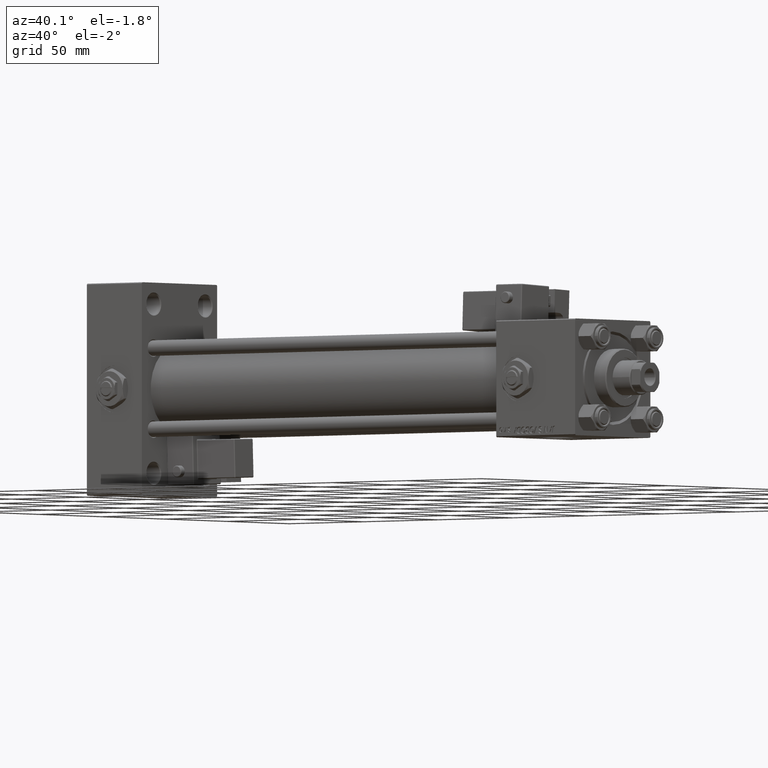
[diagram: clean part render]
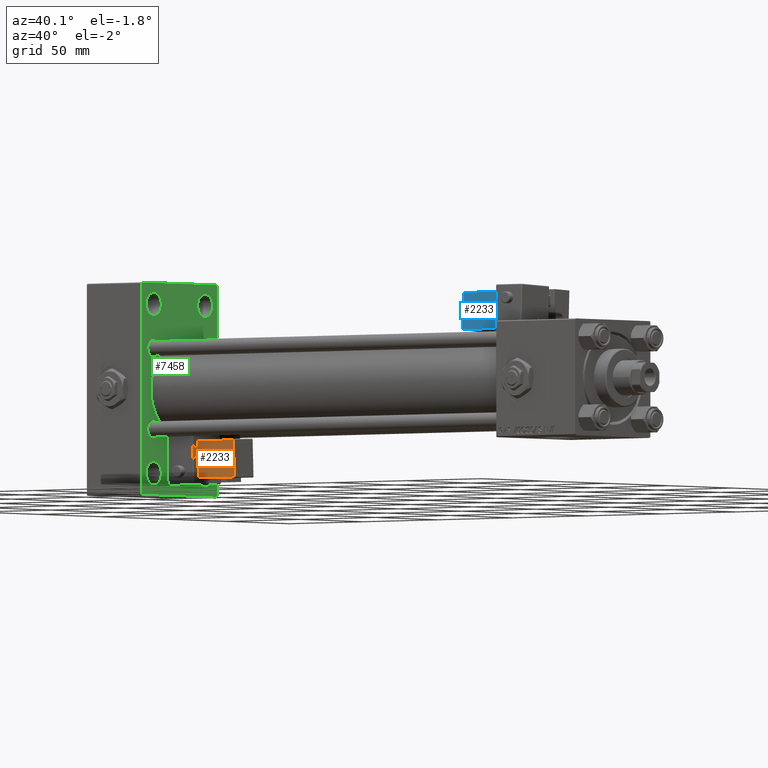
[diagram: same view with three faces highlighted in distinct colors, each labeled with its STEP entity id]
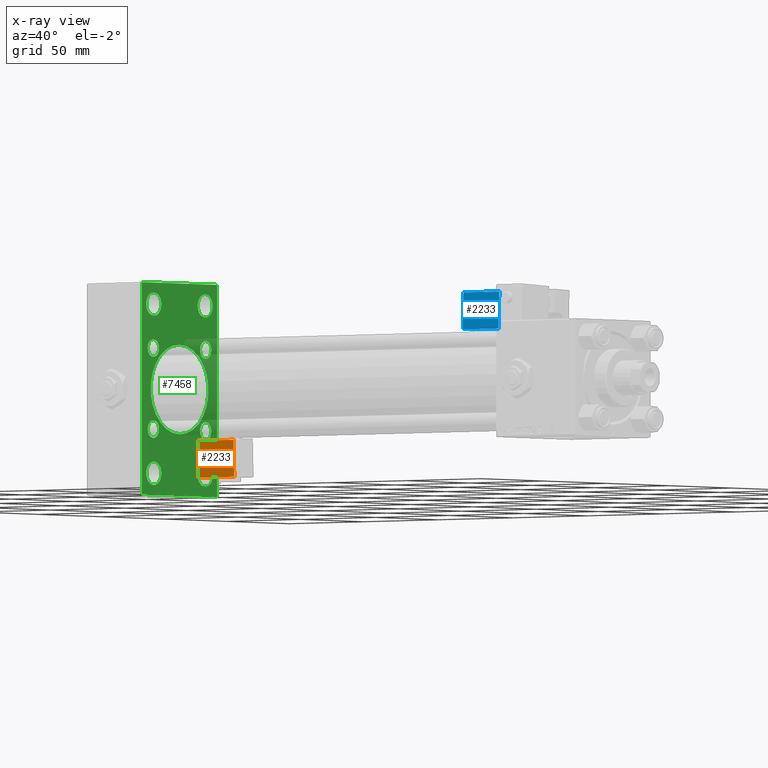
[diagram: x-ray of the same camera — body ghosted, the three highlighted faces saturated]
A machine part, auxiliary view with three faces highlighted in distinct colors.
The next image is the same camera in x-ray (body ghosted, the three faces saturated) — at least one of them is partly hidden behind the body in this view.
Their STEP definitions:

[orange] entity #2233 — the highlighted planar face has unit normal (0, 0.9994, 0.0353).
#734 = CARTESIAN_POINT ( 'NONE',  ( 33.24999999999999289, -32.24999999999999289, 22.00000000000000355 ) ) ;
#2233 = ADVANCED_FACE ( 'NONE', ( #52641 ), #23288, .F. ) ;
#2437 = DIRECTION ( 'NONE',  ( 0.000000000000000000, -0.000000000000000000, 1.000000000000000000 ) ) ;
#3435 = LINE ( 'NONE', #3699, #20481 ) ;
#3699 = CARTESIAN_POINT ( 'NONE',  ( 33.75000000000000000, -32.24999999999999289, 2.500000000000009326 ) ) ;
#6422 = EDGE_CURVE ( 'NONE', #32955, #26577, #29610, .T. ) ;
#7736 = EDGE_LOOP ( 'NONE', ( #31886, #29044, #33452, #52661 ) ) ;
#8803 = CARTESIAN_POINT ( 'NONE',  ( 33.75000000000000000, -32.24999999999999289, 21.50000000000000000 ) ) ;
#9824 = CARTESIAN_POINT ( 'NONE',  ( 33.24999999999999289, -32.24999999999999289, 21.50000000000000000 ) ) ;
#14534 = DIRECTION ( 'NONE',  ( 1.334402673828313339E-16, 0.000000000000000000, -1.000000000000000000 ) ) ;
#15736 = CARTESIAN_POINT ( 'NONE',  ( 9.250000000000003553, -32.24999999999999289, 21.50000000000000000 ) ) ;
#18372 = DIRECTION ( 'NONE',  ( -1.000000000000000000, 0.000000000000000000, -1.334402673828313339E-16 ) ) ;
#20481 = VECTOR ( 'NONE', #32761, 1000.000000000000000 ) ;
#22413 = EDGE_CURVE ( 'NONE', #39775, #32955, #50410, .T. ) ;
#23288 = PLANE ( 'NONE',  #27266 ) ;
#24187 = CARTESIAN_POINT ( 'NONE',  ( 9.250000000000005329, -32.24999999999999289, 2.500000000000004885 ) ) ;
#26577 = VERTEX_POINT ( 'NONE', #15736 ) ;
#26849 = LINE ( 'NONE', #39473, #32961 ) ;
#27159 = VECTOR ( 'NONE', #45476, 1000.000000000000000 ) ;
#27266 = AXIS2_PLACEMENT_3D ( 'NONE', #44661, #40011, #2437 ) ;
#29044 = ORIENTED_EDGE ( 'NONE', *, *, #29190, .T. ) ;
#29190 = EDGE_CURVE ( 'NONE', #50508, #39775, #3435, .T. ) ;
#29610 = LINE ( 'NONE', #8803, #50258 ) ;
#31886 = ORIENTED_EDGE ( 'NONE', *, *, #52903, .T. ) ;
#32761 = DIRECTION ( 'NONE',  ( 1.000000000000000000, -0.000000000000000000, 1.334402673828313339E-16 ) ) ;
#32955 = VERTEX_POINT ( 'NONE', #9824 ) ;
#32961 = VECTOR ( 'NONE', #14534, 1000.000000000000000 ) ;
#33452 = ORIENTED_EDGE ( 'NONE', *, *, #22413, .T. ) ;
#34722 = CARTESIAN_POINT ( 'NONE',  ( 33.24999999999999289, -32.24999999999999289, 2.500000000000008438 ) ) ;
#39473 = CARTESIAN_POINT ( 'NONE',  ( 9.250000000000005329, -32.24999999999999289, 2.000000000000005329 ) ) ;
#39775 = VERTEX_POINT ( 'NONE', #34722 ) ;
#40011 = DIRECTION ( 'NONE',  ( -0.000000000000000000, 1.000000000000000000, 0.000000000000000000 ) ) ;
#44661 = CARTESIAN_POINT ( 'NONE',  ( 33.75000000000000000, -32.24999999999999289, 22.00000000000000355 ) ) ;
#45476 = DIRECTION ( 'NONE',  ( -1.734723475976807587E-16, -0.000000000000000000, 1.000000000000000000 ) ) ;
#50258 = VECTOR ( 'NONE', #18372, 1000.000000000000000 ) ;
#50410 = LINE ( 'NONE', #734, #27159 ) ;
#50508 = VERTEX_POINT ( 'NONE', #24187 ) ;
#52641 = FACE_OUTER_BOUND ( 'NONE', #7736, .T. ) ;
#52661 = ORIENTED_EDGE ( 'NONE', *, *, #6422, .T. ) ;
#52903 = EDGE_CURVE ( 'NONE', #26577, #50508, #26849, .T. ) ;

[blue] entity #2233 — the highlighted planar face has unit normal (-0, 0.9994, -0.0353).
#734 = CARTESIAN_POINT ( 'NONE',  ( 33.24999999999999289, -32.24999999999999289, 22.00000000000000355 ) ) ;
#2233 = ADVANCED_FACE ( 'NONE', ( #52641 ), #23288, .F. ) ;
#2437 = DIRECTION ( 'NONE',  ( 0.000000000000000000, -0.000000000000000000, 1.000000000000000000 ) ) ;
#3435 = LINE ( 'NONE', #3699, #20481 ) ;
#3699 = CARTESIAN_POINT ( 'NONE',  ( 33.75000000000000000, -32.24999999999999289, 2.500000000000009326 ) ) ;
#6422 = EDGE_CURVE ( 'NONE', #32955, #26577, #29610, .T. ) ;
#7736 = EDGE_LOOP ( 'NONE', ( #31886, #29044, #33452, #52661 ) ) ;
#8803 = CARTESIAN_POINT ( 'NONE',  ( 33.75000000000000000, -32.24999999999999289, 21.50000000000000000 ) ) ;
#9824 = CARTESIAN_POINT ( 'NONE',  ( 33.24999999999999289, -32.24999999999999289, 21.50000000000000000 ) ) ;
#14534 = DIRECTION ( 'NONE',  ( 1.334402673828313339E-16, 0.000000000000000000, -1.000000000000000000 ) ) ;
#15736 = CARTESIAN_POINT ( 'NONE',  ( 9.250000000000003553, -32.24999999999999289, 21.50000000000000000 ) ) ;
#18372 = DIRECTION ( 'NONE',  ( -1.000000000000000000, 0.000000000000000000, -1.334402673828313339E-16 ) ) ;
#20481 = VECTOR ( 'NONE', #32761, 1000.000000000000000 ) ;
#22413 = EDGE_CURVE ( 'NONE', #39775, #32955, #50410, .T. ) ;
#23288 = PLANE ( 'NONE',  #27266 ) ;
#24187 = CARTESIAN_POINT ( 'NONE',  ( 9.250000000000005329, -32.24999999999999289, 2.500000000000004885 ) ) ;
#26577 = VERTEX_POINT ( 'NONE', #15736 ) ;
#26849 = LINE ( 'NONE', #39473, #32961 ) ;
#27159 = VECTOR ( 'NONE', #45476, 1000.000000000000000 ) ;
#27266 = AXIS2_PLACEMENT_3D ( 'NONE', #44661, #40011, #2437 ) ;
#29044 = ORIENTED_EDGE ( 'NONE', *, *, #29190, .T. ) ;
#29190 = EDGE_CURVE ( 'NONE', #50508, #39775, #3435, .T. ) ;
#29610 = LINE ( 'NONE', #8803, #50258 ) ;
#31886 = ORIENTED_EDGE ( 'NONE', *, *, #52903, .T. ) ;
#32761 = DIRECTION ( 'NONE',  ( 1.000000000000000000, -0.000000000000000000, 1.334402673828313339E-16 ) ) ;
#32955 = VERTEX_POINT ( 'NONE', #9824 ) ;
#32961 = VECTOR ( 'NONE', #14534, 1000.000000000000000 ) ;
#33452 = ORIENTED_EDGE ( 'NONE', *, *, #22413, .T. ) ;
#34722 = CARTESIAN_POINT ( 'NONE',  ( 33.24999999999999289, -32.24999999999999289, 2.500000000000008438 ) ) ;
#39473 = CARTESIAN_POINT ( 'NONE',  ( 9.250000000000005329, -32.24999999999999289, 2.000000000000005329 ) ) ;
#39775 = VERTEX_POINT ( 'NONE', #34722 ) ;
#40011 = DIRECTION ( 'NONE',  ( -0.000000000000000000, 1.000000000000000000, 0.000000000000000000 ) ) ;
#44661 = CARTESIAN_POINT ( 'NONE',  ( 33.75000000000000000, -32.24999999999999289, 22.00000000000000355 ) ) ;
#45476 = DIRECTION ( 'NONE',  ( -1.734723475976807587E-16, -0.000000000000000000, 1.000000000000000000 ) ) ;
#50258 = VECTOR ( 'NONE', #18372, 1000.000000000000000 ) ;
#50410 = LINE ( 'NONE', #734, #27159 ) ;
#50508 = VERTEX_POINT ( 'NONE', #24187 ) ;
#52641 = FACE_OUTER_BOUND ( 'NONE', #7736, .T. ) ;
#52661 = ORIENTED_EDGE ( 'NONE', *, *, #6422, .T. ) ;
#52903 = EDGE_CURVE ( 'NONE', #26577, #50508, #26849, .T. ) ;

[green] entity #7458 — the highlighted planar face has unit normal (-1, 0, 0).
#42 = DIRECTION ( 'NONE',  ( 0.000000000000000000, 0.000000000000000000, 1.000000000000000000 ) ) ;
#194 = LINE ( 'NONE', #50137, #6391 ) ;
#469 = DIRECTION ( 'NONE',  ( 0.000000000000000000, 0.000000000000000000, -1.000000000000000000 ) ) ;
#474 = CARTESIAN_POINT ( 'NONE',  ( 37.00000000000000000, 30.00000000000000355, -54.49999999999998579 ) ) ;
#562 = CIRCLE ( 'NONE', #32091, 6.000000000000060396 ) ;
#598 = LINE ( 'NONE', #4740, #52087 ) ;
#875 = DIRECTION ( 'NONE',  ( 0.000000000000000000, 0.000000000000000000, 1.000000000000000000 ) ) ;
#1135 = VERTEX_POINT ( 'NONE', #53887 ) ;
#1541 = DIRECTION ( 'NONE',  ( -1.000000000000000000, 0.000000000000000000, -0.000000000000000000 ) ) ;
#2087 = AXIS2_PLACEMENT_3D ( 'NONE', #46866, #45171, #32262 ) ;
#2124 = CARTESIAN_POINT ( 'NONE',  ( 37.00000000000000000, 20.84999999999999787, 20.85000000000000142 ) ) ;
#2433 = DIRECTION ( 'NONE',  ( 0.000000000000000000, -0.7071067811865474617, 0.7071067811865474617 ) ) ;
#3112 = AXIS2_PLACEMENT_3D ( 'NONE', #2124, #26812, #14494 ) ;
#3288 = CARTESIAN_POINT ( 'NONE',  ( 37.00000000000000000, 30.00000000000000355, 54.50000000000001421 ) ) ;
#3294 = DIRECTION ( 'NONE',  ( 0.000000000000000000, 0.000000000000000000, 1.000000000000000000 ) ) ;
#3319 = CARTESIAN_POINT ( 'NONE',  ( 37.00000000000000000, 0.000000000000000000, 0.000000000000000000 ) ) ;
#3594 = DIRECTION ( 'NONE',  ( 0.000000000000000000, 0.000000000000000000, 1.000000000000000000 ) ) ;
#3833 = VERTEX_POINT ( 'NONE', #18208 ) ;
#3914 = EDGE_CURVE ( 'NONE', #53101, #7137, #33454, .T. ) ;
#4298 = ORIENTED_EDGE ( 'NONE', *, *, #14327, .F. ) ;
#4468 = ORIENTED_EDGE ( 'NONE', *, *, #12722, .T. ) ;
#4740 = CARTESIAN_POINT ( 'NONE',  ( 37.00000000000000000, 30.00000000000000355, -53.99999999999995737 ) ) ;
#5166 = EDGE_LOOP ( 'NONE', ( #51239, #45504 ) ) ;
#5461 = ORIENTED_EDGE ( 'NONE', *, *, #50477, .T. ) ;
#5612 = AXIS2_PLACEMENT_3D ( 'NONE', #27894, #40809, #28167 ) ;
#5715 = EDGE_CURVE ( 'NONE', #6910, #29289, #194, .T. ) ;
#5741 = ORIENTED_EDGE ( 'NONE', *, *, #26801, .F. ) ;
#5947 = CARTESIAN_POINT ( 'NONE',  ( 37.00000000000000000, 20.50000000000000355, 37.49999999999999289 ) ) ;
#6031 = VERTEX_POINT ( 'NONE', #27838 ) ;
#6391 = VECTOR ( 'NONE', #469, 1000.000000000000000 ) ;
#6501 = AXIS2_PLACEMENT_3D ( 'NONE', #13839, #22051, #9201 ) ;
#6581 = CIRCLE ( 'NONE', #19701, 23.00000000000000000 ) ;
#6910 = VERTEX_POINT ( 'NONE', #34994 ) ;
#7137 = VERTEX_POINT ( 'NONE', #24507 ) ;
#7196 = DIRECTION ( 'NONE',  ( 0.000000000000000000, 0.000000000000000000, 1.000000000000000000 ) ) ;
#7242 = AXIS2_PLACEMENT_3D ( 'NONE', #8576, #28291, #42 ) ;
#7301 = VERTEX_POINT ( 'NONE', #21485 ) ;
#7458 = ADVANCED_FACE ( 'NONE', ( #11554, #19505, #28252, #41165, #40076, #31825, #23879, #36773, #44720, #44188 ), #45288, .F. ) ;
#7632 = EDGE_CURVE ( 'NONE', #25394, #22643, #30989, .T. ) ;
#7932 = DIRECTION ( 'NONE',  ( -1.000000000000000000, 0.000000000000000000, -0.000000000000000000 ) ) ;
#7994 = VERTEX_POINT ( 'NONE', #52045 ) ;
#8089 = CARTESIAN_POINT ( 'NONE',  ( 37.00000000000000000, 20.84999999999999787, -20.85000000000000142 ) ) ;
#8194 = LINE ( 'NONE', #474, #40582 ) ;
#8260 = DIRECTION ( 'NONE',  ( 0.000000000000000000, 0.000000000000000000, 1.000000000000000000 ) ) ;
#8576 = CARTESIAN_POINT ( 'NONE',  ( 37.00000000000000000, -20.49999999999999645, 43.50000000000000000 ) ) ;
#8735 = ORIENTED_EDGE ( 'NONE', *, *, #16777, .T. ) ;
#9201 = DIRECTION ( 'NONE',  ( 0.000000000000000000, 0.000000000000000000, 1.000000000000000000 ) ) ;
#9255 = AXIS2_PLACEMENT_3D ( 'NONE', #51208, #1541, #30335 ) ;
#9874 = CIRCLE ( 'NONE', #12516, 6.000000000000060396 ) ;
#9921 = DIRECTION ( 'NONE',  ( -0.000000000000000000, 0.7071067811865474617, 0.7071067811865474617 ) ) ;
#10082 = EDGE_CURVE ( 'NONE', #51394, #36365, #35282, .T. ) ;
#10178 = EDGE_LOOP ( 'NONE', ( #37188, #40954 ) ) ;
#10419 = ORIENTED_EDGE ( 'NONE', *, *, #39663, .F. ) ;
#10561 = DIRECTION ( 'NONE',  ( 0.000000000000000000, 0.7071067811865524577, -0.7071067811865426878 ) ) ;
#10611 = DIRECTION ( 'NONE',  ( -1.000000000000000000, 0.000000000000000000, -0.000000000000000000 ) ) ;
#11005 = AXIS2_PLACEMENT_3D ( 'NONE', #34773, #26549, #22458 ) ;
#11018 = DIRECTION ( 'NONE',  ( -0.000000000000000000, 0.000000000000000000, 1.000000000000000000 ) ) ;
#11106 = VECTOR ( 'NONE', #2433, 1000.000000000000114 ) ;
#11497 = ORIENTED_EDGE ( 'NONE', *, *, #33027, .T. ) ;
#11554 = FACE_BOUND ( 'NONE', #23398, .T. ) ;
#11586 = CARTESIAN_POINT ( 'NONE',  ( 37.00000000000000000, -20.84999999999999076, -20.85000000000000497 ) ) ;
#12516 = AXIS2_PLACEMENT_3D ( 'NONE', #13544, #37938, #42602 ) ;
#12722 = EDGE_CURVE ( 'NONE', #29289, #30998, #22634, .T. ) ;
#12784 = CIRCLE ( 'NONE', #3112, 4.499999999999948486 ) ;
#13453 = EDGE_LOOP ( 'NONE', ( #15872, #5461 ) ) ;
#13494 = CARTESIAN_POINT ( 'NONE',  ( 37.00000000000000000, 20.50000000000000355, -49.50000000000005684 ) ) ;
#13544 = CARTESIAN_POINT ( 'NONE',  ( 37.00000000000000000, -20.49999999999999645, -43.50000000000000000 ) ) ;
#13839 = CARTESIAN_POINT ( 'NONE',  ( 37.00000000000000000, -20.49999999999999645, 43.50000000000000000 ) ) ;
#14184 = AXIS2_PLACEMENT_3D ( 'NONE', #11586, #32125, #44754 ) ;
#14327 = EDGE_CURVE ( 'NONE', #34522, #21887, #28445, .T. ) ;
#14494 = DIRECTION ( 'NONE',  ( 0.000000000000000000, 0.000000000000000000, 1.000000000000000000 ) ) ;
#14854 = CARTESIAN_POINT ( 'NONE',  ( 37.00000000000000000, -29.99999999999999645, -53.99999999999996447 ) ) ;
#15062 = ORIENTED_EDGE ( 'NONE', *, *, #47557, .T. ) ;
#15143 = VECTOR ( 'NONE', #24413, 1000.000000000000000 ) ;
#15614 = ORIENTED_EDGE ( 'NONE', *, *, #53081, .T. ) ;
#15784 = EDGE_LOOP ( 'NONE', ( #5741, #4298 ) ) ;
#15818 = VERTEX_POINT ( 'NONE', #43573 ) ;
#15872 = ORIENTED_EDGE ( 'NONE', *, *, #32142, .T. ) ;
#16116 = ORIENTED_EDGE ( 'NONE', *, *, #38024, .T. ) ;
#16428 = DIRECTION ( 'NONE',  ( 0.000000000000000000, 0.000000000000000000, 1.000000000000000000 ) ) ;
#16602 = EDGE_CURVE ( 'NONE', #7137, #53101, #31310, .T. ) ;
#16771 = DIRECTION ( 'NONE',  ( -0.000000000000000000, -0.7071067811865474617, -0.7071067811865474617 ) ) ;
#16777 = EDGE_CURVE ( 'NONE', #3833, #36176, #22622, .T. ) ;
#16933 = VERTEX_POINT ( 'NONE', #23153 ) ;
#17121 = CIRCLE ( 'NONE', #31983, 4.499999999999948486 ) ;
#17544 = DIRECTION ( 'NONE',  ( -1.000000000000000000, 0.000000000000000000, -0.000000000000000000 ) ) ;
#17809 = DIRECTION ( 'NONE',  ( 0.000000000000000000, 0.000000000000000000, 1.000000000000000000 ) ) ;
#17995 = EDGE_LOOP ( 'NONE', ( #35332, #15062 ) ) ;
#18208 = CARTESIAN_POINT ( 'NONE',  ( 37.00000000000000000, 29.50000000000000355, 54.50000000000001421 ) ) ;
#18435 = CARTESIAN_POINT ( 'NONE',  ( 37.00000000000000711, -2.602085213965210642E-15, 0.000000000000000000 ) ) ;
#19242 = ORIENTED_EDGE ( 'NONE', *, *, #52495, .T. ) ;
#19505 = FACE_BOUND ( 'NONE', #50839, .T. ) ;
#19701 = AXIS2_PLACEMENT_3D ( 'NONE', #18435, #38710, #875 ) ;
#19786 = DIRECTION ( 'NONE',  ( -1.000000000000000000, 0.000000000000000000, -0.000000000000000000 ) ) ;
#19800 = CARTESIAN_POINT ( 'NONE',  ( 37.00000000000000000, -29.50000000000000711, 54.50000000000000711 ) ) ;
#20074 = VERTEX_POINT ( 'NONE', #32325 ) ;
#20573 = EDGE_LOOP ( 'NONE', ( #10419, #35009, #48009, #15614, #8735, #38561, #54252, #4468 ) ) ;
#21373 = CIRCLE ( 'NONE', #23125, 4.499999999999948486 ) ;
#21485 = CARTESIAN_POINT ( 'NONE',  ( 37.00000000000000000, -20.84999999999999076, 16.35000000000005471 ) ) ;
#21704 = CARTESIAN_POINT ( 'NONE',  ( 37.00000000000000711, 2.146024240737016609E-16, -23.00000000000000000 ) ) ;
#21887 = VERTEX_POINT ( 'NONE', #41813 ) ;
#22051 = DIRECTION ( 'NONE',  ( -1.000000000000000000, 0.000000000000000000, -0.000000000000000000 ) ) ;
#22458 = DIRECTION ( 'NONE',  ( 0.000000000000000000, 0.000000000000000000, 1.000000000000000000 ) ) ;
#22622 = LINE ( 'NONE', #35197, #47975 ) ;
#22634 = LINE ( 'NONE', #30572, #36304 ) ;
#22643 = VERTEX_POINT ( 'NONE', #5947 ) ;
#22743 = CARTESIAN_POINT ( 'NONE',  ( 37.00000000000000000, -20.84999999999999076, 25.34999999999995168 ) ) ;
#23013 = CARTESIAN_POINT ( 'NONE',  ( 37.00000000000000000, -20.84999999999999076, -25.34999999999995168 ) ) ;
#23121 = ORIENTED_EDGE ( 'NONE', *, *, #34883, .T. ) ;
#23125 = AXIS2_PLACEMENT_3D ( 'NONE', #28523, #33437, #8260 ) ;
#23153 = CARTESIAN_POINT ( 'NONE',  ( 37.00000000000000000, -20.49999999999999645, -37.49999999999993605 ) ) ;
#23398 = EDGE_LOOP ( 'NONE', ( #11497, #25501 ) ) ;
#23480 = DIRECTION ( 'NONE',  ( 0.000000000000000000, 0.000000000000000000, 1.000000000000000000 ) ) ;
#23879 = FACE_BOUND ( 'NONE', #17995, .T. ) ;
#24048 = VERTEX_POINT ( 'NONE', #37916 ) ;
#24413 = DIRECTION ( 'NONE',  ( 0.000000000000000000, 0.000000000000000000, -1.000000000000000000 ) ) ;
#24441 = CARTESIAN_POINT ( 'NONE',  ( 37.00000000000000000, 20.50000000000000355, -43.50000000000000000 ) ) ;
#24507 = CARTESIAN_POINT ( 'NONE',  ( 37.00000000000000000, -20.84999999999999076, -16.35000000000005471 ) ) ;
#24525 = DIRECTION ( 'NONE',  ( 0.000000000000000000, 0.000000000000000000, 1.000000000000000000 ) ) ;
#24720 = EDGE_CURVE ( 'NONE', #7301, #27212, #39927, .T. ) ;
#25394 = VERTEX_POINT ( 'NONE', #30601 ) ;
#25501 = ORIENTED_EDGE ( 'NONE', *, *, #7632, .T. ) ;
#25638 = EDGE_CURVE ( 'NONE', #20074, #1135, #30135, .T. ) ;
#25739 = CIRCLE ( 'NONE', #2087, 6.000000000000005329 ) ;
#25863 = EDGE_CURVE ( 'NONE', #29753, #7994, #598, .T. ) ;
#26014 = CARTESIAN_POINT ( 'NONE',  ( 37.00000000000000000, 20.84999999999999787, -20.85000000000000142 ) ) ;
#26549 = DIRECTION ( 'NONE',  ( 1.000000000000000000, -0.000000000000000000, 0.000000000000000000 ) ) ;
#26794 = VERTEX_POINT ( 'NONE', #30217 ) ;
#26801 = EDGE_CURVE ( 'NONE', #21887, #34522, #6581, .T. ) ;
#26812 = DIRECTION ( 'NONE',  ( -1.000000000000000000, 0.000000000000000000, -0.000000000000000000 ) ) ;
#26935 = AXIS2_PLACEMENT_3D ( 'NONE', #44316, #10611, #23480 ) ;
#27212 = VERTEX_POINT ( 'NONE', #22743 ) ;
#27838 = CARTESIAN_POINT ( 'NONE',  ( 37.00000000000000000, 20.84999999999999787, -25.34999999999994813 ) ) ;
#27894 = CARTESIAN_POINT ( 'NONE',  ( 37.00000000000000000, 20.50000000000000355, 43.50000000000000000 ) ) ;
#28167 = DIRECTION ( 'NONE',  ( 0.000000000000000000, 0.000000000000000000, 1.000000000000000000 ) ) ;
#28252 = FACE_BOUND ( 'NONE', #13453, .T. ) ;
#28268 = CARTESIAN_POINT ( 'NONE',  ( 37.00000000000000000, 20.50000000000000355, -37.49999999999993605 ) ) ;
#28291 = DIRECTION ( 'NONE',  ( -1.000000000000000000, 0.000000000000000000, -0.000000000000000000 ) ) ;
#28445 = CIRCLE ( 'NONE', #11005, 23.00000000000000000 ) ;
#28523 = CARTESIAN_POINT ( 'NONE',  ( 37.00000000000000000, 20.84999999999999787, 20.85000000000000142 ) ) ;
#29289 = VERTEX_POINT ( 'NONE', #14854 ) ;
#29568 = CIRCLE ( 'NONE', #50632, 6.000000000000060396 ) ;
#29753 = VERTEX_POINT ( 'NONE', #39932 ) ;
#29781 = VERTEX_POINT ( 'NONE', #31948 ) ;
#30135 = CIRCLE ( 'NONE', #6501, 6.000000000000005329 ) ;
#30217 = CARTESIAN_POINT ( 'NONE',  ( 37.00000000000000000, 20.84999999999999787, -16.35000000000005116 ) ) ;
#30335 = DIRECTION ( 'NONE',  ( 0.000000000000000000, 0.000000000000000000, 1.000000000000000000 ) ) ;
#30572 = CARTESIAN_POINT ( 'NONE',  ( 37.00000000000000000, -29.49999999999998224, -54.50000000000000000 ) ) ;
#30601 = CARTESIAN_POINT ( 'NONE',  ( 37.00000000000000000, 20.50000000000000355, 49.50000000000000000 ) ) ;
#30989 = CIRCLE ( 'NONE', #5612, 6.000000000000005329 ) ;
#30998 = VERTEX_POINT ( 'NONE', #31360 ) ;
#31310 = CIRCLE ( 'NONE', #26935, 4.499999999999948486 ) ;
#31360 = CARTESIAN_POINT ( 'NONE',  ( 37.00000000000000000, -29.49999999999998224, -54.50000000000000000 ) ) ;
#31657 = EDGE_CURVE ( 'NONE', #36176, #6910, #53257, .T. ) ;
#31797 = LINE ( 'NONE', #3288, #15143 ) ;
#31825 = FACE_BOUND ( 'NONE', #5166, .T. ) ;
#31948 = CARTESIAN_POINT ( 'NONE',  ( 37.00000000000000000, 20.84999999999999787, 16.35000000000005116 ) ) ;
#31983 = AXIS2_PLACEMENT_3D ( 'NONE', #26014, #17544, #17809 ) ;
#31998 = AXIS2_PLACEMENT_3D ( 'NONE', #33122, #7932, #16428 ) ;
#32091 = AXIS2_PLACEMENT_3D ( 'NONE', #35960, #49149, #7196 ) ;
#32125 = DIRECTION ( 'NONE',  ( -1.000000000000000000, 0.000000000000000000, -0.000000000000000000 ) ) ;
#32142 = EDGE_CURVE ( 'NONE', #24048, #16933, #9874, .T. ) ;
#32262 = DIRECTION ( 'NONE',  ( 0.000000000000000000, 0.000000000000000000, 1.000000000000000000 ) ) ;
#32325 = CARTESIAN_POINT ( 'NONE',  ( 37.00000000000000000, -20.49999999999999645, 37.49999999999999289 ) ) ;
#32853 = CIRCLE ( 'NONE', #9255, 4.499999999999948486 ) ;
#32964 = CIRCLE ( 'NONE', #43473, 4.499999999999948486 ) ;
#33027 = EDGE_CURVE ( 'NONE', #22643, #25394, #25739, .T. ) ;
#33122 = CARTESIAN_POINT ( 'NONE',  ( 37.00000000000000000, -20.84999999999999076, 20.85000000000000497 ) ) ;
#33437 = DIRECTION ( 'NONE',  ( -1.000000000000000000, 0.000000000000000000, -0.000000000000000000 ) ) ;
#33454 = CIRCLE ( 'NONE', #14184, 4.499999999999948486 ) ;
#34394 = DIRECTION ( 'NONE',  ( 0.000000000000000000, -1.000000000000000000, -1.156482317317871478E-16 ) ) ;
#34522 = VERTEX_POINT ( 'NONE', #21704 ) ;
#34773 = CARTESIAN_POINT ( 'NONE',  ( 37.00000000000000711, -2.602085213965210642E-15, 0.000000000000000000 ) ) ;
#34883 = EDGE_CURVE ( 'NONE', #29781, #15818, #12784, .T. ) ;
#34994 = CARTESIAN_POINT ( 'NONE',  ( 37.00000000000000000, -29.99999999999999645, 54.00000000000002132 ) ) ;
#35009 = ORIENTED_EDGE ( 'NONE', *, *, #25863, .T. ) ;
#35197 = CARTESIAN_POINT ( 'NONE',  ( 37.00000000000000000, 30.00000000000000355, 54.50000000000001421 ) ) ;
#35282 = CIRCLE ( 'NONE', #49461, 6.000000000000060396 ) ;
#35332 = ORIENTED_EDGE ( 'NONE', *, *, #24720, .T. ) ;
#35430 = CARTESIAN_POINT ( 'NONE',  ( 37.00000000000000000, 30.00000000000000355, 54.00000000000001421 ) ) ;
#35960 = CARTESIAN_POINT ( 'NONE',  ( 37.00000000000000000, -20.49999999999999645, -43.50000000000000000 ) ) ;
#36135 = CIRCLE ( 'NONE', #7242, 6.000000000000005329 ) ;
#36176 = VERTEX_POINT ( 'NONE', #19800 ) ;
#36304 = VECTOR ( 'NONE', #10561, 1000.000000000000000 ) ;
#36365 = VERTEX_POINT ( 'NONE', #28268 ) ;
#36773 = FACE_BOUND ( 'NONE', #52757, .T. ) ;
#37188 = ORIENTED_EDGE ( 'NONE', *, *, #3914, .T. ) ;
#37916 = CARTESIAN_POINT ( 'NONE',  ( 37.00000000000000000, -20.49999999999999645, -49.50000000000005684 ) ) ;
#37938 = DIRECTION ( 'NONE',  ( -1.000000000000000000, 0.000000000000000000, -0.000000000000000000 ) ) ;
#38024 = EDGE_CURVE ( 'NONE', #1135, #20074, #36135, .T. ) ;
#38561 = ORIENTED_EDGE ( 'NONE', *, *, #31657, .T. ) ;
#38710 = DIRECTION ( 'NONE',  ( 1.000000000000000000, -0.000000000000000000, 0.000000000000000000 ) ) ;
#39663 = EDGE_CURVE ( 'NONE', #29753, #30998, #8194, .T. ) ;
#39927 = CIRCLE ( 'NONE', #31998, 4.499999999999948486 ) ;
#39932 = CARTESIAN_POINT ( 'NONE',  ( 37.00000000000000000, 29.49999999999997513, -54.49999999999998579 ) ) ;
#40076 = FACE_BOUND ( 'NONE', #10178, .T. ) ;
#40582 = VECTOR ( 'NONE', #41628, 1000.000000000000000 ) ;
#40809 = DIRECTION ( 'NONE',  ( -1.000000000000000000, 0.000000000000000000, -0.000000000000000000 ) ) ;
#40875 = CARTESIAN_POINT ( 'NONE',  ( 37.00000000000000000, 20.50000000000000355, -43.50000000000000000 ) ) ;
#40954 = ORIENTED_EDGE ( 'NONE', *, *, #16602, .T. ) ;
#41165 = FACE_BOUND ( 'NONE', #44863, .T. ) ;
#41403 = DIRECTION ( 'NONE',  ( -1.000000000000000000, 0.000000000000000000, -0.000000000000000000 ) ) ;
#41628 = DIRECTION ( 'NONE',  ( 0.000000000000000000, -1.000000000000000000, -2.312964634635742957E-16 ) ) ;
#41813 = CARTESIAN_POINT ( 'NONE',  ( 37.00000000000000711, -2.602085213965210642E-15, 23.00000000000000000 ) ) ;
#42220 = EDGE_CURVE ( 'NONE', #50281, #7994, #31797, .T. ) ;
#42602 = DIRECTION ( 'NONE',  ( 0.000000000000000000, 0.000000000000000000, 1.000000000000000000 ) ) ;
#43473 = AXIS2_PLACEMENT_3D ( 'NONE', #8089, #48946, #24525 ) ;
#43573 = CARTESIAN_POINT ( 'NONE',  ( 37.00000000000000000, 20.84999999999999787, 25.34999999999994813 ) ) ;
#43848 = CARTESIAN_POINT ( 'NONE',  ( 37.00000000000000000, 29.50000000000000355, 54.50000000000001421 ) ) ;
#43898 = ORIENTED_EDGE ( 'NONE', *, *, #10082, .T. ) ;
#44188 = FACE_OUTER_BOUND ( 'NONE', #20573, .T. ) ;
#44231 = EDGE_CURVE ( 'NONE', #15818, #29781, #21373, .T. ) ;
#44316 = CARTESIAN_POINT ( 'NONE',  ( 37.00000000000000000, -20.84999999999999076, -20.85000000000000497 ) ) ;
#44381 = LINE ( 'NONE', #43848, #11106 ) ;
#44720 = FACE_BOUND ( 'NONE', #15784, .T. ) ;
#44754 = DIRECTION ( 'NONE',  ( 0.000000000000000000, 0.000000000000000000, 1.000000000000000000 ) ) ;
#44863 = EDGE_LOOP ( 'NONE', ( #43898, #19242 ) ) ;
#45171 = DIRECTION ( 'NONE',  ( -1.000000000000000000, 0.000000000000000000, -0.000000000000000000 ) ) ;
#45288 = PLANE ( 'NONE',  #52043 ) ;
#45504 = ORIENTED_EDGE ( 'NONE', *, *, #50085, .T. ) ;
#46810 = EDGE_CURVE ( 'NONE', #6031, #26794, #17121, .T. ) ;
#46866 = CARTESIAN_POINT ( 'NONE',  ( 37.00000000000000000, 20.50000000000000355, 43.50000000000000000 ) ) ;
#47557 = EDGE_CURVE ( 'NONE', #27212, #7301, #32853, .T. ) ;
#47975 = VECTOR ( 'NONE', #34394, 1000.000000000000000 ) ;
#48009 = ORIENTED_EDGE ( 'NONE', *, *, #42220, .F. ) ;
#48311 = ORIENTED_EDGE ( 'NONE', *, *, #44231, .T. ) ;
#48946 = DIRECTION ( 'NONE',  ( -1.000000000000000000, 0.000000000000000000, -0.000000000000000000 ) ) ;
#49149 = DIRECTION ( 'NONE',  ( -1.000000000000000000, 0.000000000000000000, -0.000000000000000000 ) ) ;
#49461 = AXIS2_PLACEMENT_3D ( 'NONE', #24441, #52980, #3594 ) ;
#49848 = ORIENTED_EDGE ( 'NONE', *, *, #25638, .T. ) ;
#49964 = CARTESIAN_POINT ( 'NONE',  ( 37.00000000000000000, -29.99999999999999645, 54.00000000000002132 ) ) ;
#50085 = EDGE_CURVE ( 'NONE', #26794, #6031, #32964, .T. ) ;
#50137 = CARTESIAN_POINT ( 'NONE',  ( 37.00000000000000000, -29.99999999999999645, 54.50000000000000711 ) ) ;
#50281 = VERTEX_POINT ( 'NONE', #35430 ) ;
#50477 = EDGE_CURVE ( 'NONE', #16933, #24048, #562, .T. ) ;
#50632 = AXIS2_PLACEMENT_3D ( 'NONE', #40875, #41403, #3294 ) ;
#50839 = EDGE_LOOP ( 'NONE', ( #49848, #16116 ) ) ;
#51208 = CARTESIAN_POINT ( 'NONE',  ( 37.00000000000000000, -20.84999999999999076, 20.85000000000000497 ) ) ;
#51239 = ORIENTED_EDGE ( 'NONE', *, *, #46810, .T. ) ;
#51394 = VERTEX_POINT ( 'NONE', #13494 ) ;
#52043 = AXIS2_PLACEMENT_3D ( 'NONE', #3319, #19786, #11018 ) ;
#52045 = CARTESIAN_POINT ( 'NONE',  ( 37.00000000000000000, 30.00000000000000355, -53.99999999999995737 ) ) ;
#52087 = VECTOR ( 'NONE', #9921, 1000.000000000000114 ) ;
#52495 = EDGE_CURVE ( 'NONE', #36365, #51394, #29568, .T. ) ;
#52757 = EDGE_LOOP ( 'NONE', ( #23121, #48311 ) ) ;
#52980 = DIRECTION ( 'NONE',  ( -1.000000000000000000, 0.000000000000000000, -0.000000000000000000 ) ) ;
#53081 = EDGE_CURVE ( 'NONE', #50281, #3833, #44381, .T. ) ;
#53101 = VERTEX_POINT ( 'NONE', #23013 ) ;
#53257 = LINE ( 'NONE', #49964, #53470 ) ;
#53470 = VECTOR ( 'NONE', #16771, 1000.000000000000114 ) ;
#53887 = CARTESIAN_POINT ( 'NONE',  ( 37.00000000000000000, -20.49999999999999645, 49.50000000000000000 ) ) ;
#54252 = ORIENTED_EDGE ( 'NONE', *, *, #5715, .T. ) ;